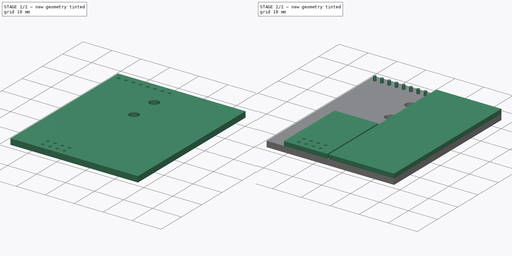
[diagram: build sequence overview — one tinted view per stage of 2, left to right]
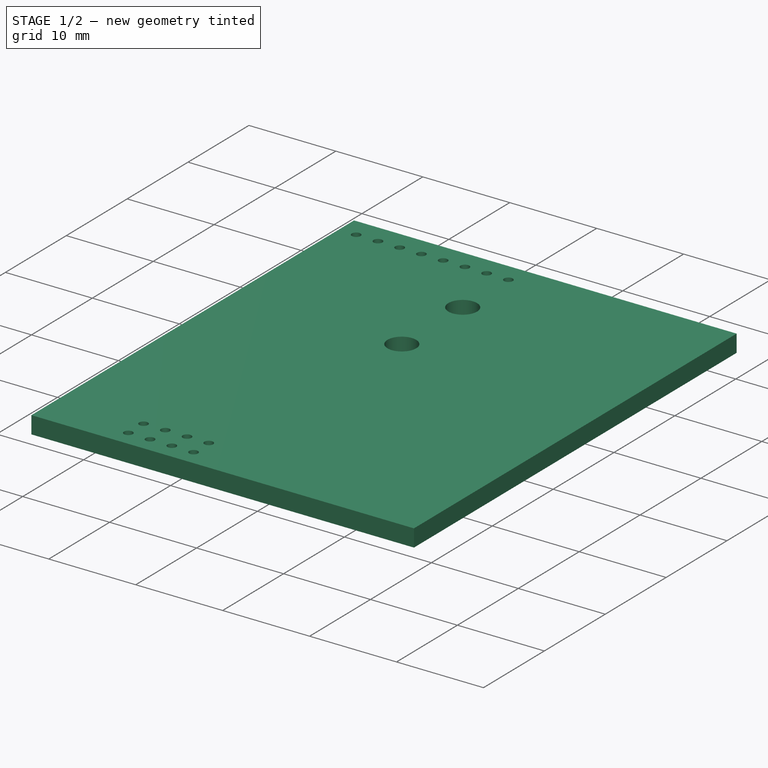
[diagram: stage 1 of 2 — iso view after this stage's code; geometry added in this stage tinted green]
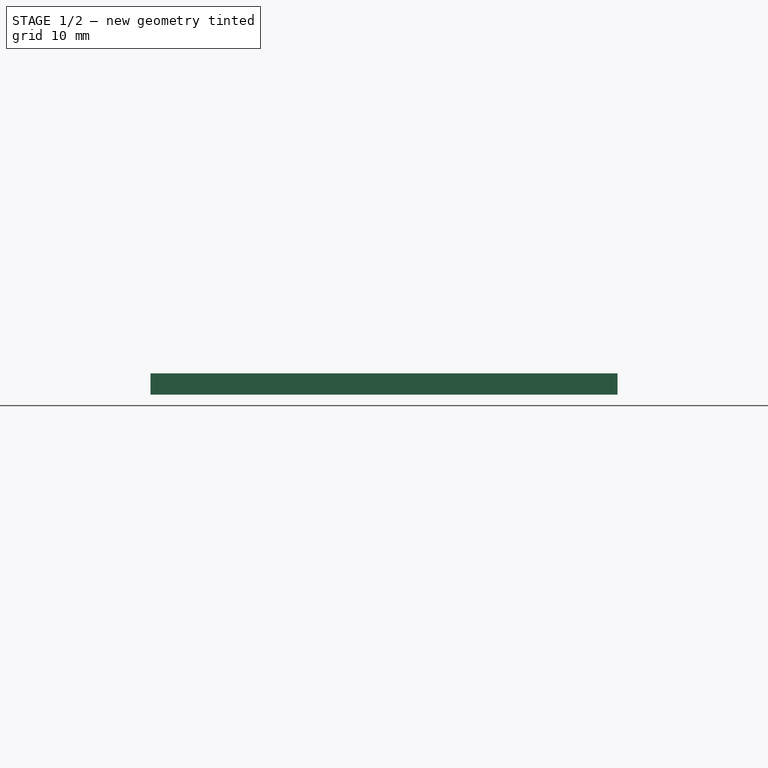
[diagram: stage 1 of 2 — front view after this stage's code; geometry added in this stage tinted green]
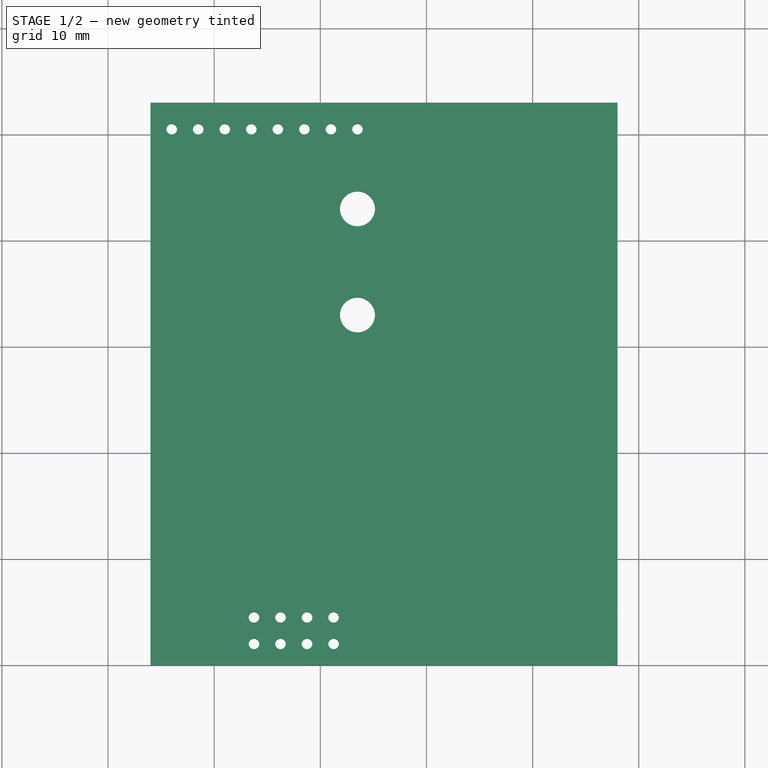
[diagram: stage 1 of 2 — top view after this stage's code; geometry added in this stage tinted green]
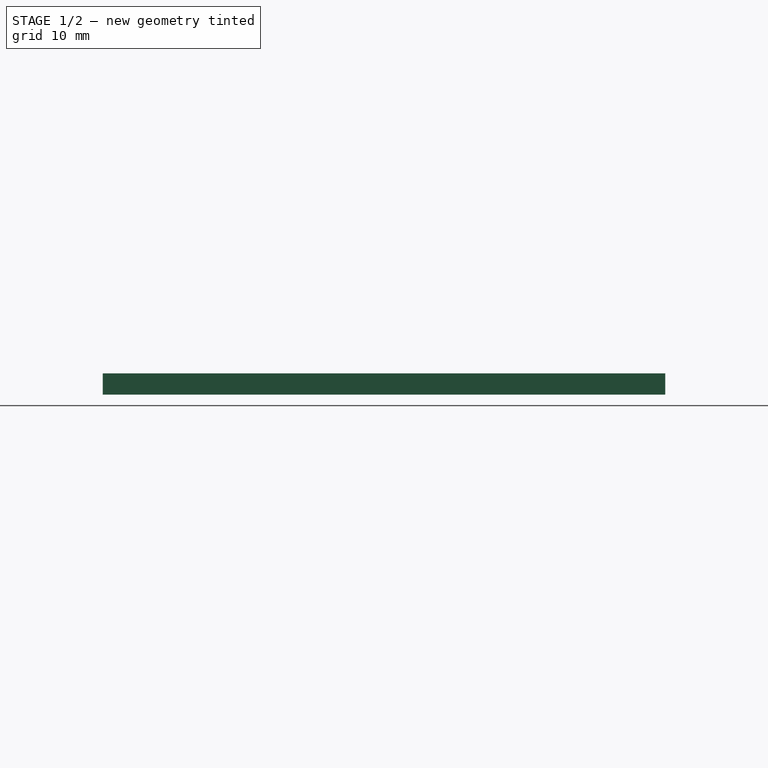
[diagram: stage 1 of 2 — right view after this stage's code; geometry added in this stage tinted green]
FCSTD DOCUMENT  (FreeCAD 0.19R24276 (Git))
Label: pcb_common
License: All rights reserved
LicenseURL: http://en.wikipedia.org/wiki/All_rights_reserved
objects: Sketcher::SketchObject×2, PartDesign::Pad×2, PartDesign::Body×1
note: 7 computed .brp shape members not serialized (recipe doc carries the construction recipe); baked Part::Feature solids carry a one-line shape summary decoded from their .brp

FEATURE [Sketcher::SketchObject] Sketch
  FullyConstrained = false
  MapMode = 5
  Support = -> [XY_Plane]
  sketch-geometry (34):
    g0: LineSegment StartX=0 StartY=0 StartZ=0 EndX=38 EndY=0 EndZ=0
    g1: LineSegment StartX=38 StartY=0 StartZ=0 EndX=38 EndY=53 EndZ=0
    g2: LineSegment StartX=0 StartY=53 StartZ=0 EndX=0 EndY=0 EndZ=0
    g3: LineSegment StartX=0 StartY=25 StartZ=0 EndX=15 EndY=25 EndZ=0
    g4: LineSegment StartX=15 StartY=25 StartZ=0 EndX=15 EndY=53 EndZ=0
    g5: Circle CenterX=13.5 CenterY=43 CenterZ=0 NormalX=0 NormalY=0 NormalZ=1 AngleXU=0 Radius=1.65
    g6: Circle CenterX=13.5 CenterY=33 CenterZ=0 NormalX=0 NormalY=0 NormalZ=1 AngleXU=0 Radius=1.65
    g7: LineSegment StartX=15 StartY=25 StartZ=0 EndX=15 EndY=0 EndZ=0
    g8: Circle CenterX=1 CenterY=50.5 CenterZ=0 NormalX=0 NormalY=0 NormalZ=1 AngleXU=0 Radius=0.5
    g9: Circle CenterX=3.5 CenterY=50.5 CenterZ=0 NormalX=0 NormalY=0 NormalZ=1 AngleXU=0 Radius=0.5
    g10: Circle CenterX=6 CenterY=50.5 CenterZ=0 NormalX=0 NormalY=0 NormalZ=1 AngleXU=0 Radius=0.5
    g11: Circle CenterX=8.5 CenterY=50.5 CenterZ=0 NormalX=0 NormalY=0 NormalZ=1 AngleXU=0 Radius=0.5
    g12: Circle CenterX=11 CenterY=50.5 CenterZ=0 NormalX=0 NormalY=0 NormalZ=1 AngleXU=0 Radius=0.5
    g13: Circle CenterX=13.5 CenterY=50.5 CenterZ=0 NormalX=0 NormalY=0 NormalZ=1 AngleXU=0 Radius=0.5
    g14: Circle CenterX=-4 CenterY=50.5 CenterZ=0 NormalX=0 NormalY=0 NormalZ=1 AngleXU=0 Radius=0.5
    g15: Circle CenterX=-1.5 CenterY=50.5 CenterZ=0 NormalX=0 NormalY=0 NormalZ=1 AngleXU=0 Radius=0.5
    g16: LineSegment StartX=-6 StartY=53 StartZ=0 EndX=-6 EndY=0 EndZ=0
    g17: LineSegment StartX=0 StartY=0 StartZ=0 EndX=-6 EndY=0 EndZ=0
    g18: LineSegment StartX=-6 StartY=53 StartZ=0 EndX=0 EndY=53 EndZ=0
    g19: LineSegment StartX=0 StartY=53 StartZ=0 EndX=15 EndY=53 EndZ=0
    g20: LineSegment StartX=15 StartY=53 StartZ=0 EndX=38 EndY=53 EndZ=0
    g21: LineSegment StartX=-6 StartY=0 StartZ=0 EndX=38 EndY=0 EndZ=0
    g22: LineSegment StartX=38 StartY=0 StartZ=0 EndX=38 EndY=53 EndZ=0
    g23: LineSegment StartX=38 StartY=53 StartZ=0 EndX=-6 EndY=53 EndZ=0
    g24: LineSegment StartX=-6 StartY=53 StartZ=0 EndX=-6 EndY=0 EndZ=0
    g25: Circle CenterX=8.75 CenterY=4.5 CenterZ=0 NormalX=0 NormalY=0 NormalZ=1 AngleXU=0 Radius=0.5
    g26: Circle CenterX=11.25 CenterY=4.5 CenterZ=0 NormalX=0 NormalY=0 NormalZ=1 AngleXU=0 Radius=0.5
    g27: Circle CenterX=3.75 CenterY=4.5 CenterZ=0 NormalX=0 NormalY=0 NormalZ=1 AngleXU=0 Radius=0.5
    g28: Circle CenterX=6.25 CenterY=4.5 CenterZ=0 NormalX=0 NormalY=0 NormalZ=1 AngleXU=0 Radius=0.5
    g29: Circle CenterX=8.75 CenterY=2 CenterZ=0 NormalX=0 NormalY=0 NormalZ=1 AngleXU=0 Radius=0.5
    g30: Circle CenterX=11.25 CenterY=2 CenterZ=0 NormalX=0 NormalY=0 NormalZ=1 AngleXU=0 Radius=0.5
    g31: Circle CenterX=3.75 CenterY=2 CenterZ=0 NormalX=0 NormalY=0 NormalZ=1 AngleXU=0 Radius=0.5
    g32: Circle CenterX=6.25 CenterY=2 CenterZ=0 NormalX=0 NormalY=0 NormalZ=1 AngleXU=0 Radius=0.5
    g33: LineSegment StartX=7.5 StartY=0 StartZ=0 EndX=7.5 EndY=4.5 EndZ=0
  constraints (94):
    c: Coincident(g0,g1)
    c: Coincident(g2,g0)
    c: Horizontal(g0)
    c: Vertical(g1)
    c: Vertical(g2)
    c: Coincident(g0,g-1)
    c: DistanceX(g0,g0) = 38
    c: DistanceY(g1,g1) = 53
    c: Horizontal(g3)
    c: Coincident(g4,g3)
    c: Vertical(g4)
    c: PointOnObject(g3,g2)
    c: DistanceX(g4,g1) = 23
    c: DistanceY(g-1,g3) = 25
    c: Vertical(g6,g5)
    c: Diameter(g5) = 3.3
    c: Equal(g5,g6)
    c: DistanceY(g6,g5) = 10
    c: DistanceY(g5,g2) = 10
    c: DistanceX(g5,g1) = 24.5
    c: Coincident(g7,g3)
    c: Vertical(g7)
    c: PointOnObject(g7,g0)
    c: Horizontal(g8,g9)
    c: Diameter(g9) = 1
    c: Equal(g8,g9)
    c: DistanceX(g8,g9) = 2.5
    c: Horizontal(g10,g11)
    c: Equal(g9,g11) = 1
    c: Equal(g10,g11)
    c: DistanceX(g10,g11) = 2.5
    c: DistanceX(g9,g10) = 2.5
    c: Horizontal(g12,g13)
    c: Equal(g12,g13)
    c: DistanceX(g12,g13) = 2.5
    c: Horizontal(g11,g12)
    c: DistanceX(g11,g12) = 2.5
    c: Vertical(g13,g5)
    c: DistanceY(g5,g13) = 7.5
    c: Horizontal(g9,g10)
    c: Equal(g12,g11)
    c: Horizontal(g14,g15)
    c: Equal(g9,g15) = 1
    c: Equal(g14,g15)
    c: DistanceX(g14,g15) = 2.5
    c: Horizontal(g15,g8)
    c: DistanceX(g15,g8) = 2.5
    c: Vertical(g16)
    c: Coincident(g17,g-1)
    c: Coincident(g17,g16)
    c: DistanceX(g16,g14) = 2
    c: Horizontal(g17)
    c: Coincident(g18,g16)
    c: Coincident(g18,g2)
    c: Coincident(g19,g2)
    c: Coincident(g19,g4)
    c: Horizontal(g19)
    c: Coincident(g20,g4)
    c: Coincident(g20,g1)
    c: Horizontal(g20)
    c: Horizontal(g18)
    c: Coincident(g21,g16)
    c: Coincident(g21,g0)
    c: Coincident(g22,g21)
    c: Coincident(g22,g1)
    c: Coincident(g23,g22)
    c: Coincident(g23,g16)
    c: Coincident(g24,g23)
    c: Coincident(g24,g21)
    c: Horizontal(g25,g26)
    c: Equal(g9,g26) = 1
    c: Equal(g25,g26)
    c: DistanceX(g25,g26) = 2.5
    c: Horizontal(g27,g28)
    c: Equal(g26,g28) = 1
    c: Equal(g27,g28)
    c: DistanceX(g27,g28) = 2.5
    c: Horizontal(g28,g25)
    c: DistanceX(g28,g25) = 2.5
    c: Horizontal(g29,g30)
    c: Equal(g29,g30)
    c: DistanceX(g29,g30) = 2.5
    c: Horizontal(g31,g32)
    c: Equal(g30,g32) = 1
    c: Equal(g31,g32)
    c: DistanceX(g31,g32) = 2.5
    c: Horizontal(g32,g29)
    c: DistanceX(g32,g29) = 2.5
    c: Vertical(g31,g27)
    c: DistanceY(g31,g27) = 2.5
    c: DistanceY(g-1,g31) = 2
    c: Vertical(g33)
    c: Symmetric(g-1,g7,g33)
    c: Symmetric(g28,g25,g33)
FEATURE [Sketcher::SketchObject] Sketch001
  FullyConstrained = false
  MapMode = 5
  Placement = pos=(0,0,1.5) rot=(0,0,1;0rad)
  sketch-geometry (40):
    g0: LineSegment StartX=0 StartY=0 StartZ=0 EndX=38 EndY=0 EndZ=0
    g1: LineSegment StartX=38 StartY=0 StartZ=0 EndX=38 EndY=53 EndZ=0
    g2: LineSegment StartX=0 StartY=53 StartZ=0 EndX=0 EndY=0 EndZ=0
    g3: LineSegment StartX=0 StartY=25 StartZ=0 EndX=15 EndY=25 EndZ=0
    g4: LineSegment StartX=15 StartY=25 StartZ=0 EndX=15 EndY=53 EndZ=0
    g5: Circle CenterX=13.5 CenterY=43 CenterZ=0 NormalX=0 NormalY=0 NormalZ=1 AngleXU=0 Radius=1.65
    g6: Circle CenterX=13.5 CenterY=33 CenterZ=0 NormalX=0 NormalY=0 NormalZ=1 AngleXU=0 Radius=1.65
    g7: LineSegment StartX=15 StartY=25 StartZ=0 EndX=15 EndY=0 EndZ=0
    g8: Circle CenterX=1 CenterY=50.5 CenterZ=0 NormalX=0 NormalY=0 NormalZ=1 AngleXU=0 Radius=0.5
    g9: Circle CenterX=3.5 CenterY=50.5 CenterZ=0 NormalX=0 NormalY=0 NormalZ=1 AngleXU=0 Radius=0.5
    g10: Circle CenterX=6 CenterY=50.5 CenterZ=0 NormalX=0 NormalY=0 NormalZ=1 AngleXU=0 Radius=0.5
    g11: Circle CenterX=8.5 CenterY=50.5 CenterZ=0 NormalX=0 NormalY=0 NormalZ=1 AngleXU=0 Radius=0.5
    g12: Circle CenterX=11 CenterY=50.5 CenterZ=0 NormalX=0 NormalY=0 NormalZ=1 AngleXU=0 Radius=0.5
    g13: Circle CenterX=13.5 CenterY=50.5 CenterZ=0 NormalX=0 NormalY=0 NormalZ=1 AngleXU=0 Radius=0.5
    g14: Circle CenterX=-4 CenterY=50.5 CenterZ=0 NormalX=0 NormalY=0 NormalZ=1 AngleXU=0 Radius=0.5
    g15: Circle CenterX=-1.5 CenterY=50.5 CenterZ=0 NormalX=0 NormalY=0 NormalZ=1 AngleXU=0 Radius=0.5
    g16: LineSegment StartX=-6 StartY=53 StartZ=0 EndX=-6 EndY=0 EndZ=0
    g17: LineSegment StartX=0 StartY=0 StartZ=0 EndX=-6 EndY=0 EndZ=0
    g18: LineSegment StartX=-6 StartY=53 StartZ=0 EndX=0 EndY=53 EndZ=0
    g19: LineSegment StartX=0 StartY=53 StartZ=0 EndX=15 EndY=53 EndZ=0
    g20: LineSegment StartX=15 StartY=53 StartZ=0 EndX=38 EndY=53 EndZ=0
    g21: LineSegment StartX=-6 StartY=0 StartZ=0 EndX=38 EndY=0 EndZ=0
    g22: LineSegment StartX=38 StartY=0 StartZ=0 EndX=38 EndY=53 EndZ=0
    g23: LineSegment StartX=38 StartY=53 StartZ=0 EndX=-6 EndY=53 EndZ=0
    g24: LineSegment StartX=-6 StartY=53 StartZ=0 EndX=-6 EndY=0 EndZ=0
    g25: Circle CenterX=8.75 CenterY=4.5 CenterZ=0 NormalX=0 NormalY=0 NormalZ=1 AngleXU=0 Radius=0.5
    g26: Circle CenterX=11.25 CenterY=4.5 CenterZ=0 NormalX=0 NormalY=0 NormalZ=1 AngleXU=0 Radius=0.5
    g27: Circle CenterX=3.75 CenterY=4.5 CenterZ=0 NormalX=0 NormalY=0 NormalZ=1 AngleXU=0 Radius=0.5
    g28: Circle CenterX=6.25 CenterY=4.5 CenterZ=0 NormalX=0 NormalY=0 NormalZ=1 AngleXU=0 Radius=0.5
    g29: Circle CenterX=8.75 CenterY=2 CenterZ=0 NormalX=0 NormalY=0 NormalZ=1 AngleXU=0 Radius=0.5
    g30: Circle CenterX=11.25 CenterY=2 CenterZ=0 NormalX=0 NormalY=0 NormalZ=1 AngleXU=0 Radius=0.5
    g31: Circle CenterX=3.75 CenterY=2 CenterZ=0 NormalX=0 NormalY=0 NormalZ=1 AngleXU=0 Radius=0.5
    g32: Circle CenterX=6.25 CenterY=2 CenterZ=0 NormalX=0 NormalY=0 NormalZ=1 AngleXU=0 Radius=0.5
    g33: LineSegment StartX=7.5 StartY=0 StartZ=0 EndX=7.5 EndY=4.5 EndZ=0
    g34: LineSegment StartX=0 StartY=25 StartZ=0 EndX=0 EndY=0 EndZ=0
    g35: LineSegment StartX=0 StartY=0 StartZ=0 EndX=15 EndY=0 EndZ=0
    g36: LineSegment StartX=15.5 StartY=0 StartZ=0 EndX=15.5 EndY=53 EndZ=0
    g37: LineSegment StartX=38 StartY=0 StartZ=0 EndX=15.5 EndY=0 EndZ=0
    g38: LineSegment StartX=38 StartY=0 StartZ=0 EndX=38 EndY=53 EndZ=0
    g39: LineSegment StartX=15.5 StartY=53 StartZ=0 EndX=38 EndY=53 EndZ=0
  constraints (109):
    c: Coincident(g0,g1)
    c: Coincident(g2,g0)
    c: Horizontal(g0)
    c: Vertical(g1)
    c: Vertical(g2)
    c: Coincident(g0,g-1)
    c: DistanceX(g0,g0) = 38
    c: DistanceY(g1,g1) = 53
    c: Horizontal(g3)
    c: Coincident(g4,g3)
    c: Vertical(g4)
    c: PointOnObject(g3,g2)
    c: DistanceX(g4,g1) = 23
    c: DistanceY(g-1,g3) = 25
    c: Vertical(g6,g5)
    c: Diameter(g5) = 3.3
    c: Equal(g5,g6)
    c: DistanceY(g6,g5) = 10
    c: DistanceY(g5,g2) = 10
    c: DistanceX(g5,g1) = 24.5
    c: Coincident(g7,g3)
    c: Vertical(g7)
    c: PointOnObject(g7,g0)
    c: Horizontal(g8,g9)
    c: Diameter(g9) = 1
    c: Equal(g8,g9)
    c: DistanceX(g8,g9) = 2.5
    c: Horizontal(g10,g11)
    c: Equal(g9,g11) = 1
    c: Equal(g10,g11)
    c: DistanceX(g10,g11) = 2.5
    c: DistanceX(g9,g10) = 2.5
    c: Horizontal(g12,g13)
    c: Equal(g12,g13)
    c: DistanceX(g12,g13) = 2.5
    c: Horizontal(g11,g12)
    c: DistanceX(g11,g12) = 2.5
    c: Vertical(g13,g5)
    c: DistanceY(g5,g13) = 7.5
    c: Horizontal(g9,g10)
    c: Equal(g12,g11)
    c: Horizontal(g14,g15)
    c: Equal(g9,g15) = 1
    c: Equal(g14,g15)
    c: DistanceX(g14,g15) = 2.5
    c: Horizontal(g15,g8)
    c: DistanceX(g15,g8) = 2.5
    c: Vertical(g16)
    c: Coincident(g17,g-1)
    c: Coincident(g17,g16)
    c: DistanceX(g16,g14) = 2
    c: Horizontal(g17)
    c: Coincident(g18,g16)
    c: Coincident(g18,g2)
    c: Coincident(g19,g2)
    c: Coincident(g19,g4)
    c: Horizontal(g19)
    c: Coincident(g20,g4)
    c: Coincident(g20,g1)
    c: Horizontal(g20)
    c: Horizontal(g18)
    c: Coincident(g21,g16)
    c: Coincident(g21,g0)
    c: Coincident(g22,g21)
    c: Coincident(g22,g1)
    c: Coincident(g23,g22)
    c: Coincident(g23,g16)
    c: Coincident(g24,g23)
    c: Coincident(g24,g21)
    c: Horizontal(g25,g26)
    c: Equal(g9,g26) = 1
    c: Equal(g25,g26)
    c: DistanceX(g25,g26) = 2.5
    c: Horizontal(g27,g28)
    c: Equal(g26,g28) = 1
    c: Equal(g27,g28)
    c: DistanceX(g27,g28) = 2.5
    c: Horizontal(g28,g25)
    c: DistanceX(g28,g25) = 2.5
    c: Horizontal(g29,g30)
    c: Equal(g29,g30)
    c: DistanceX(g29,g30) = 2.5
    c: Horizontal(g31,g32)
    c: Equal(g30,g32) = 1
    c: Equal(g31,g32)
    c: DistanceX(g31,g32) = 2.5
    c: Horizontal(g32,g29)
    c: DistanceX(g32,g29) = 2.5
    c: Vertical(g31,g27)
    c: DistanceY(g31,g27) = 2.5
    c: DistanceY(g-1,g31) = 2
    c: Vertical(g33)
    c: Symmetric(g-1,g7,g33)
    c: Symmetric(g28,g25,g33)
    c: Coincident(g34,g3)
    c: Coincident(g34,g-1)
    c: Coincident(g35,g34)
    c: Coincident(g35,g7)
    c: Vertical(g36)
    c: DistanceX(g7,g36) = 0.5
    c: Coincident(g37,g0)
    c: Coincident(g37,g36)
    c: Horizontal(g37)
    c: Coincident(g38,g37)
    c: Vertical(g38)
    c: Coincident(g39,g36)
    c: Coincident(g39,g38)
    c: Horizontal(g39)
    c: Horizontal(g36,g4)
FEATURE [PartDesign::Pad] Pad
  Direction = (1,1,1)
  Length = 2
  Length2 = 100
  Profile = -> Sketch
  Type = 0
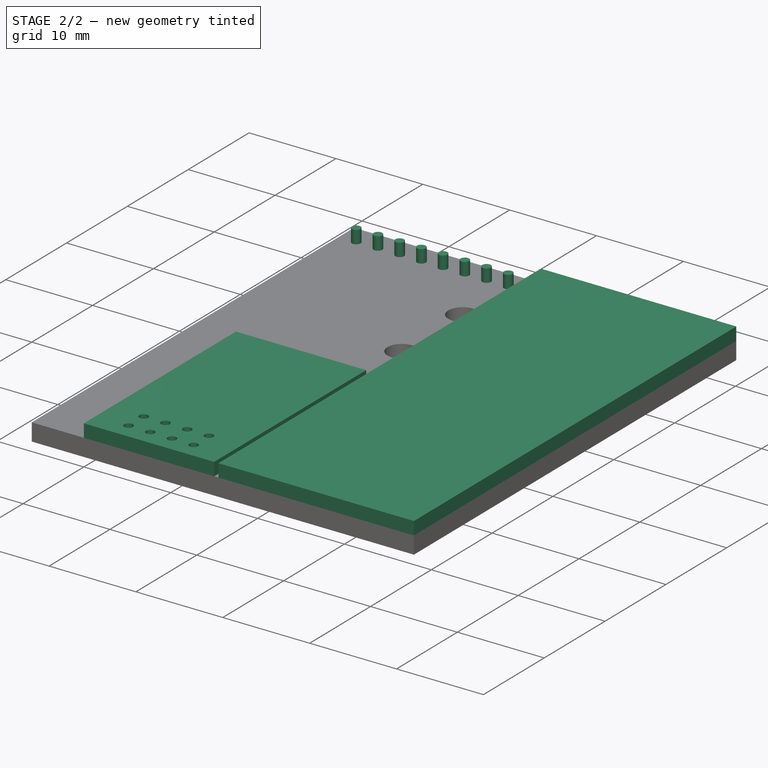
[diagram: stage 2 of 2 — iso view after this stage's code; geometry added in this stage tinted green]
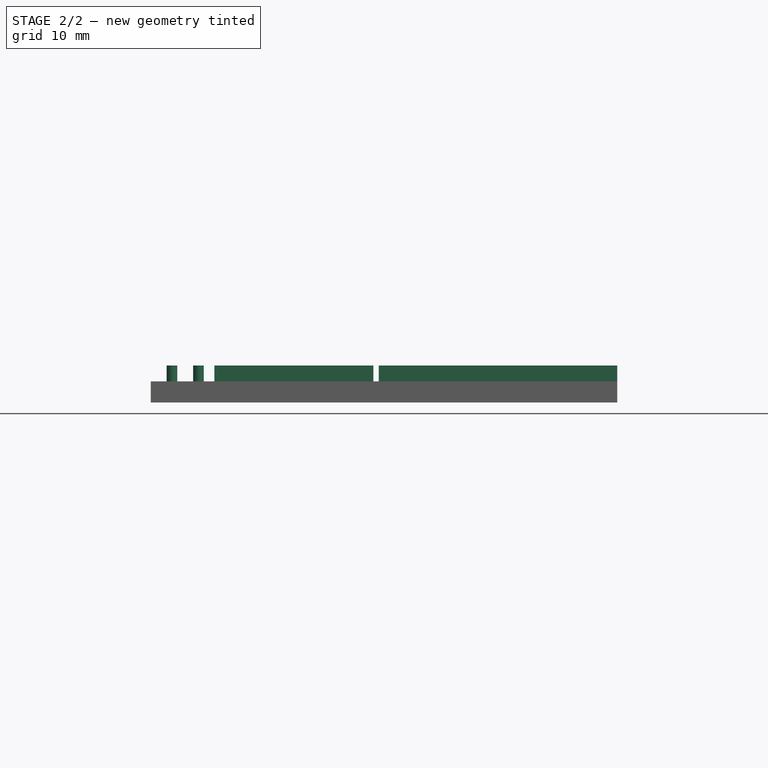
[diagram: stage 2 of 2 — front view after this stage's code; geometry added in this stage tinted green]
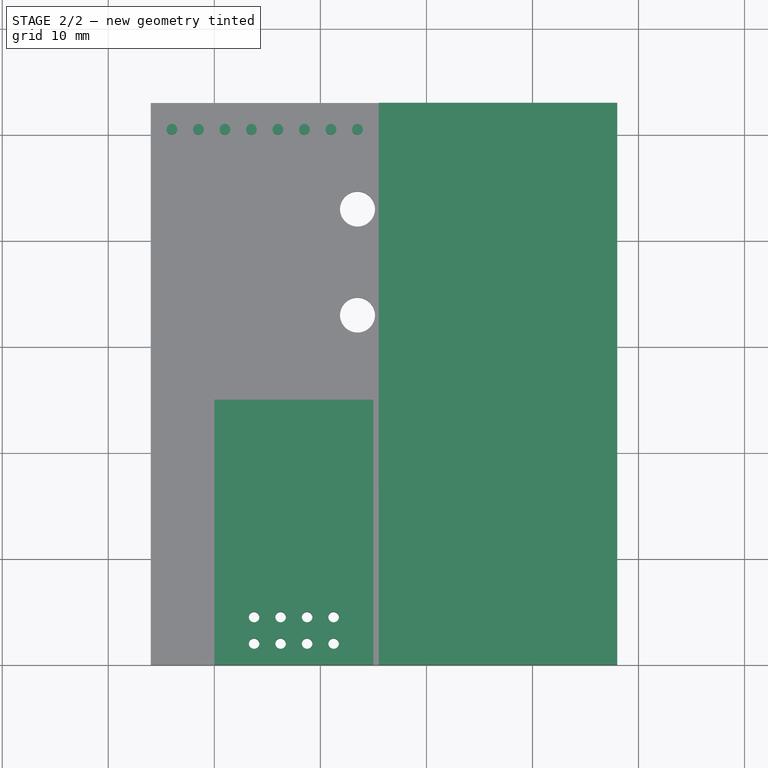
[diagram: stage 2 of 2 — top view after this stage's code; geometry added in this stage tinted green]
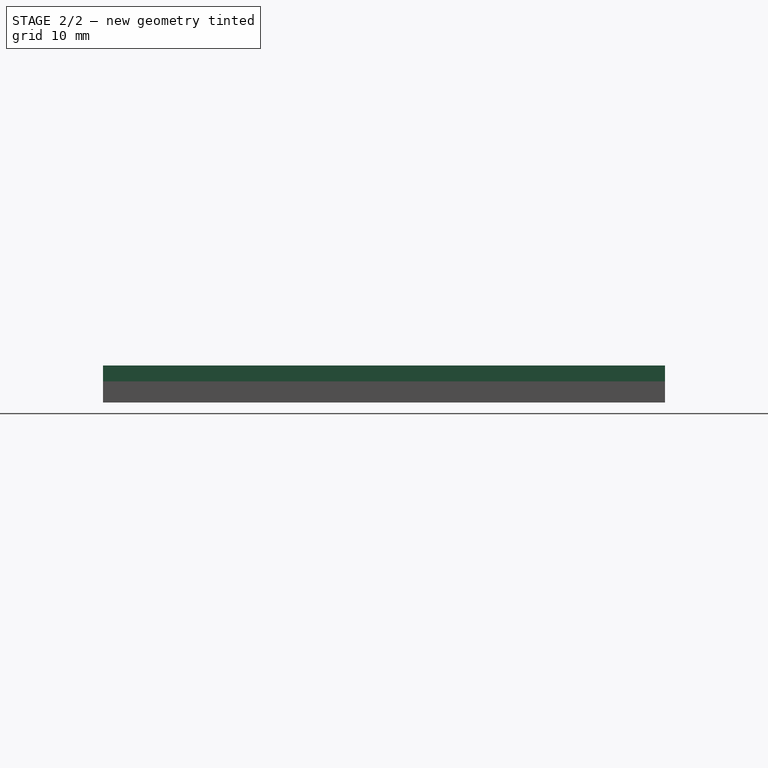
[diagram: stage 2 of 2 — right view after this stage's code; geometry added in this stage tinted green]
FEATURE [PartDesign::Pad] Pad001
  BaseFeature = -> Pad
  Direction = (1,1,1)
  Length = 2
  Length2 = 100
  Profile = -> Sketch001
  Type = 0
FEATURE [PartDesign::Body] Body
  Group = -> [Sketch,Pad,Sketch001,Pad001]
  Origin = -> Origin
  Tip = -> Pad001
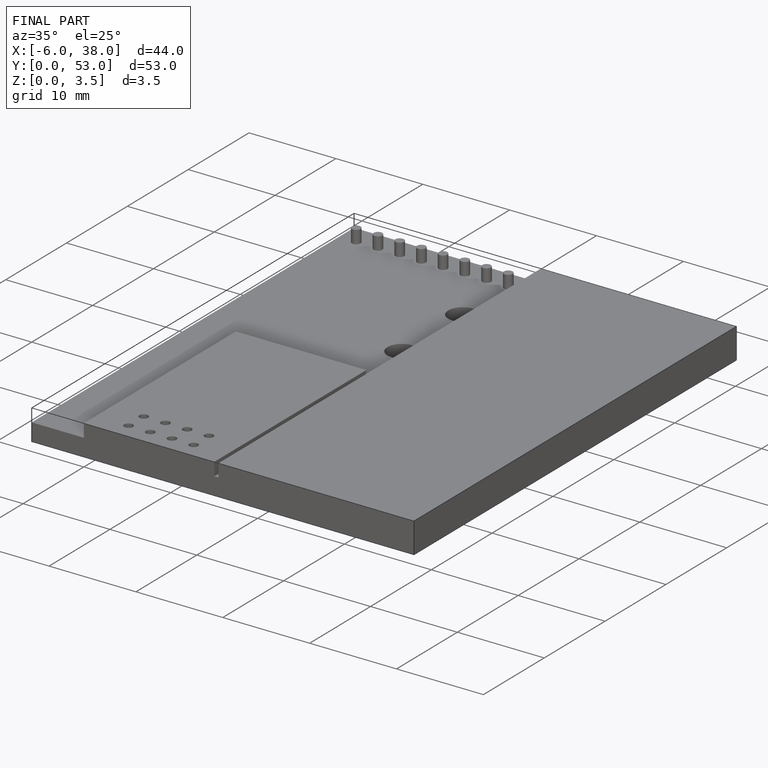
[diagram: finished part — iso view with bounding-box wireframe]
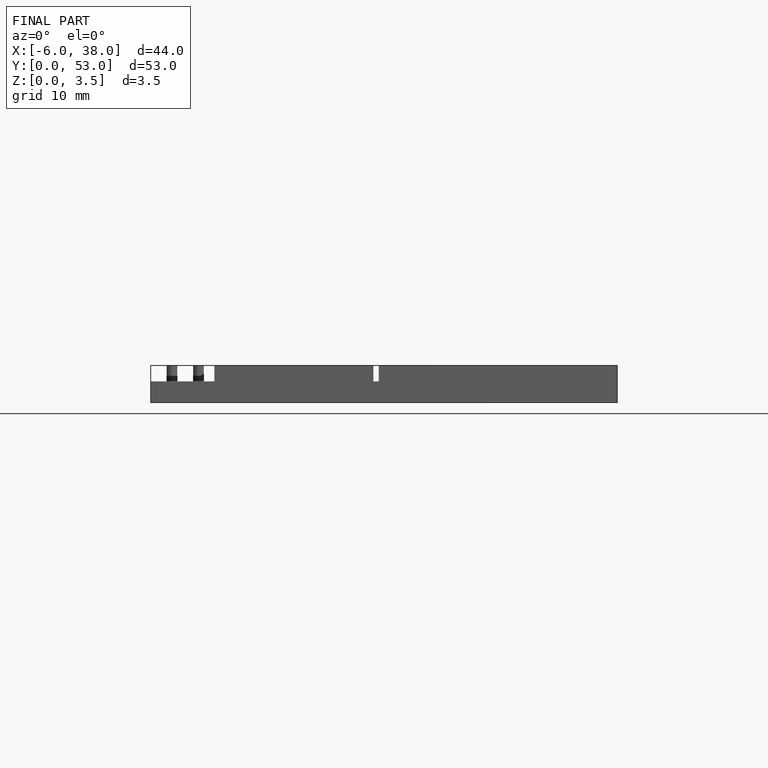
[diagram: finished part — front view with bounding-box wireframe]
